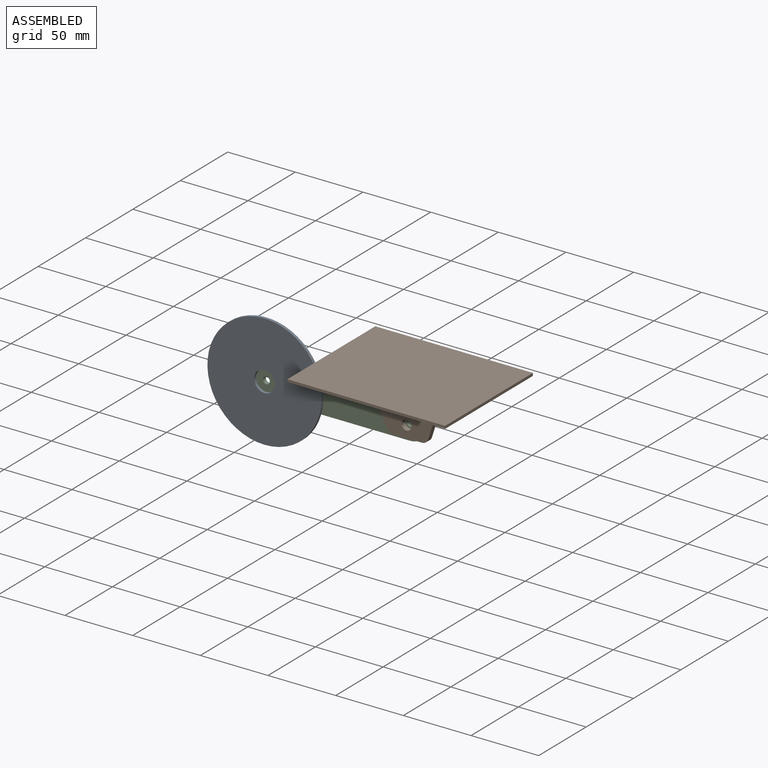
[diagram: assembled view]
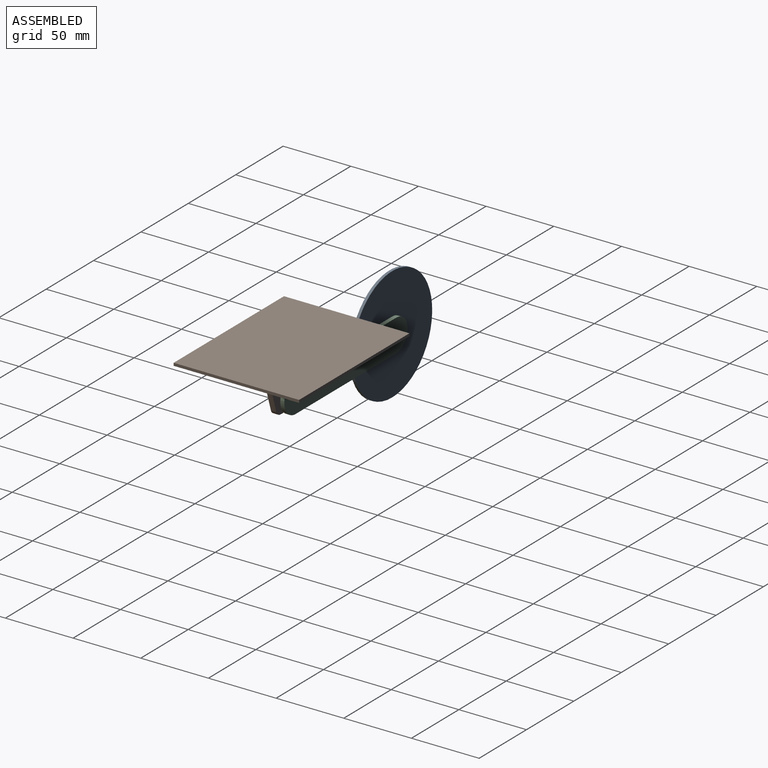
[diagram: assembled view, second angle]
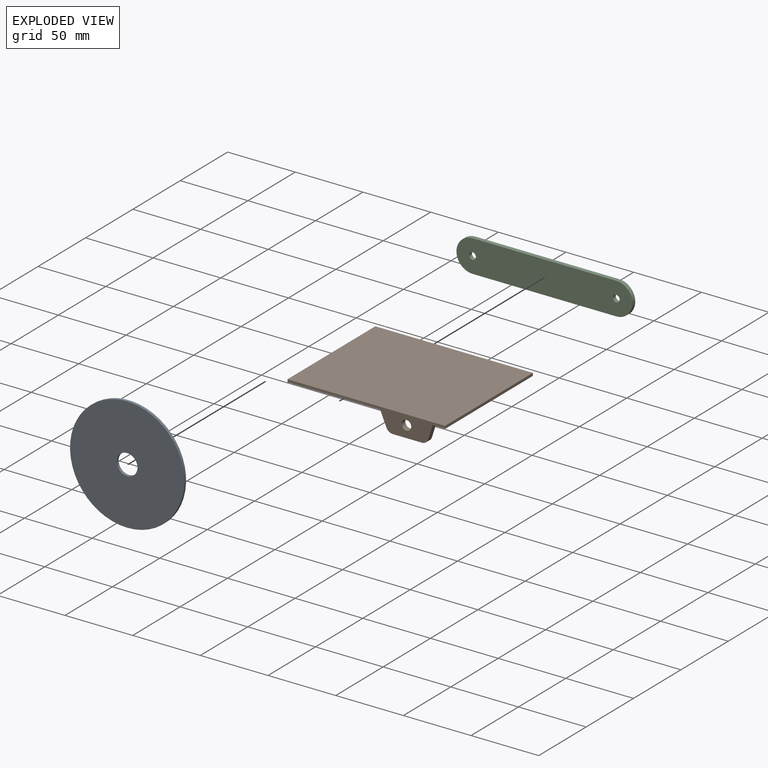
[diagram: exploded view]
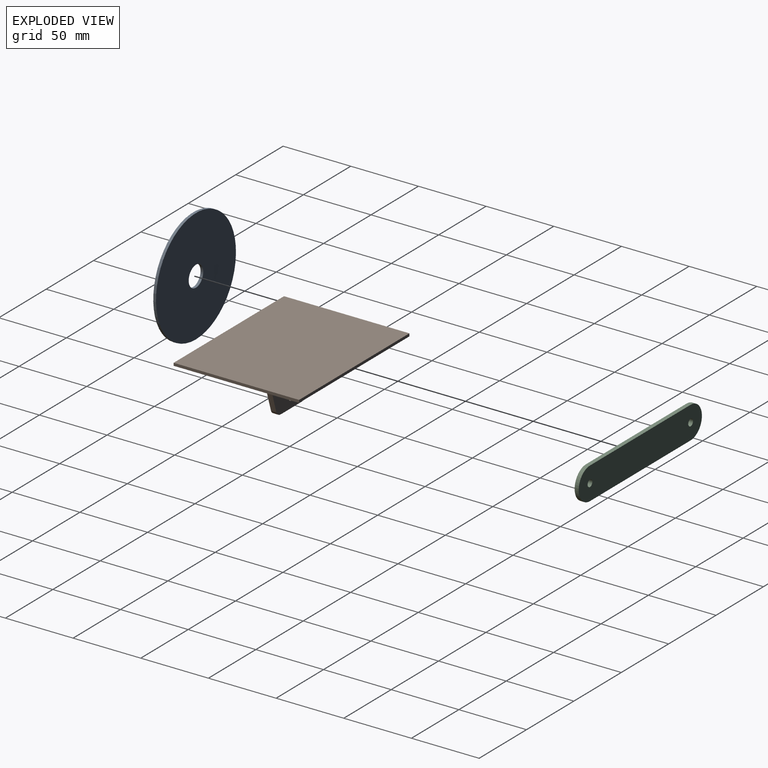
[diagram: exploded view, second angle]
ASSEMBLY  parts=3 mates=2
PART A: 4 faces, bbox 84.4x2x84.4 mm
  f0: cylinder r=7.68mm len=15.35mm, axis (0,1,0), area 96.5mm2, adj f2,f3
  f1: cylinder r=42.19mm len=84.38mm, axis (0,1,0), area 530.2mm2, adj f2,f3
  f2: plane 84.38x84.38mm, normal (0,-1,0), area 5407mm2, adj f0,f1
  f3: plane 84.38x84.38mm, normal (0,1,0), area 5407mm2, adj f0,f1
PART B: 14 faces, bbox 116.5x92.7x39.9 mm
  f0: plane 92.68x2mm, normal (1,0,0), area 185.4mm2, adj f1,f3,f4,f5
  f1: plane 116.46x2mm, normal (0,1,0), area 232.9mm2, adj f0,f2,f4,f5
  f2: plane 92.68x2mm, normal (-1,0,0), area 185.4mm2, adj f1,f3,f4,f5
  f3: plane 116.46x2mm, normal (0,-1,0), area 232.9mm2, adj f0,f2,f4,f5
  f4: plane 116.46x92.68mm, normal (0,0,1), area 10793.5mm2, adj f0,f1,f2,f3
  f5: plane 116.46x92.68mm, normal (0,0,-1), area 10566.8mm2, adj f0,f1,f2,f3,f7,f8,f12,f13
  f6: cylinder r=5mm len=4.77mm, axis (0,1,0), area 25.3mm2, adj f7,f11,f12,f13
  f7: plane 34.42x10.87mm, normal (0.95,0,-0.3), area 144.4mm2, adj f5,f6,f12,f13
  f8: plane 34.88x14.93mm, normal (-0.92,0,-0.39), area 151.8mm2, adj f5,f9,f12,f13
  f9: cylinder r=5mm len=4.6mm, axis (0,1,0), area 23.3mm2, adj f8,f11,f12,f13
  f10: cylinder r=3.57mm len=7.14mm, axis (0,1,0), area 89.7mm2, adj f12,f13
  f11: plane 21.5x4mm, normal (0,0,-1), area 86mm2, adj f6,f9,f12,f13
  f12: plane 56.67x37.91mm, normal (0,-1,0), area 1569.4mm2, adj f5,f6,f7,f8,f9,f10,f11
  f13: plane 56.67x37.91mm, normal (0,1,0), area 1569.4mm2, adj f5,f6,f7,f8,f9,f10,f11
PART C: 8 faces, bbox 130x3x23.8 mm
  f0: plane 106.23x3mm, normal (0,0,1), area 318.7mm2, adj f1,f3,f4,f5
  f1: cylinder r=11.89mm len=23.79mm, axis (0,1,0), area 112.1mm2, adj f0,f2,f4,f5
  f2: plane 106.23x3mm, normal (0,0,-1), area 318.7mm2, adj f1,f3,f4,f5
  f3: cylinder r=11.89mm len=23.79mm, axis (0,1,0), area 112.1mm2, adj f0,f2,f4,f5
  f4: plane 130.02x23.79mm, normal (0,-1,0), area 2932mm2, adj f0,f1,f2,f3,f6,f7
  f5: plane 130.02x23.79mm, normal (0,1,0), area 2932mm2, adj f0,f1,f2,f3,f6,f7
  f6: cylinder r=2.5mm len=5mm, axis (0,-1,0), area 47.1mm2, adj f4,f5
  f7: cylinder r=2.5mm len=5mm, axis (0,-1,0), area 47.1mm2, adj f4,f5
PLACE A t=(13.26,15,16.58)mm
PLACE B t=(119.49,15,45.93)mm
PLACE C t=(65.02,18,17.53)mm
MATE revolute C.f3 <-> B.f10  axis (0,-1,0) through (119.49,15,16.58)mm
MATE revolute C.f1 <-> A.f0  axis (0,-1,0) through (13.26,15,16.58)mm
